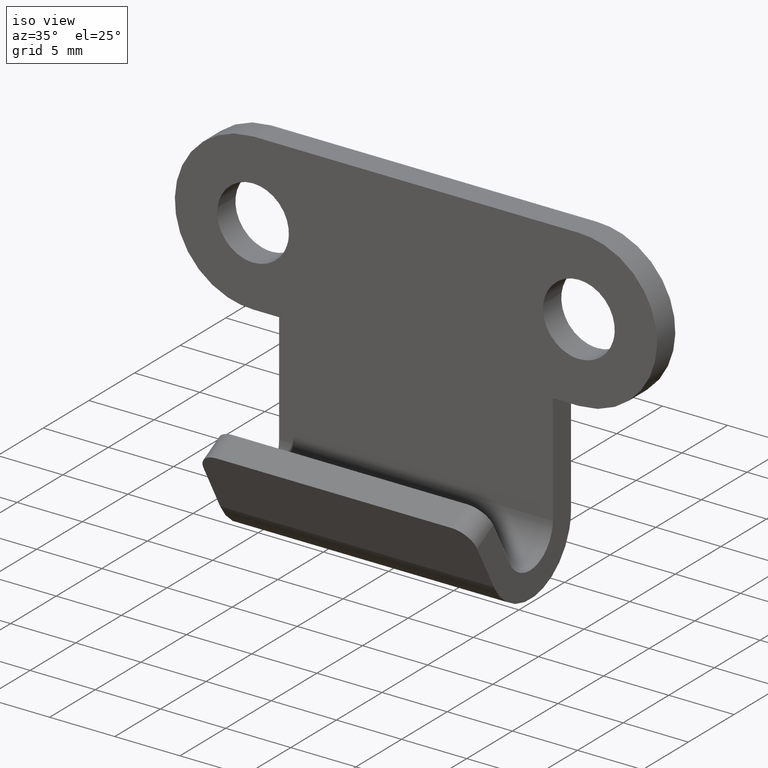
[diagram: clean part render]
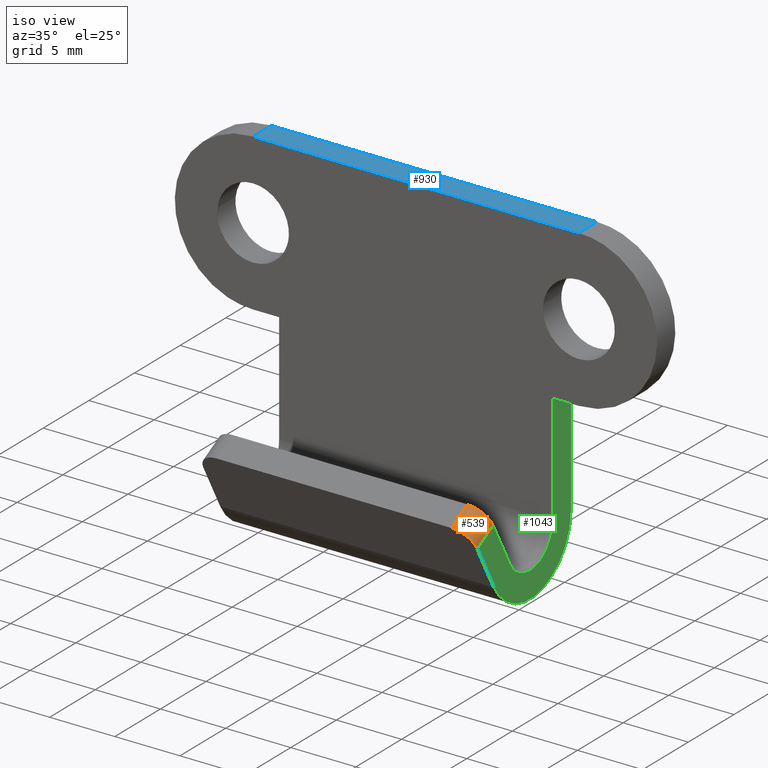
[diagram: same view with three faces highlighted in distinct colors, each labeled with its STEP entity id]
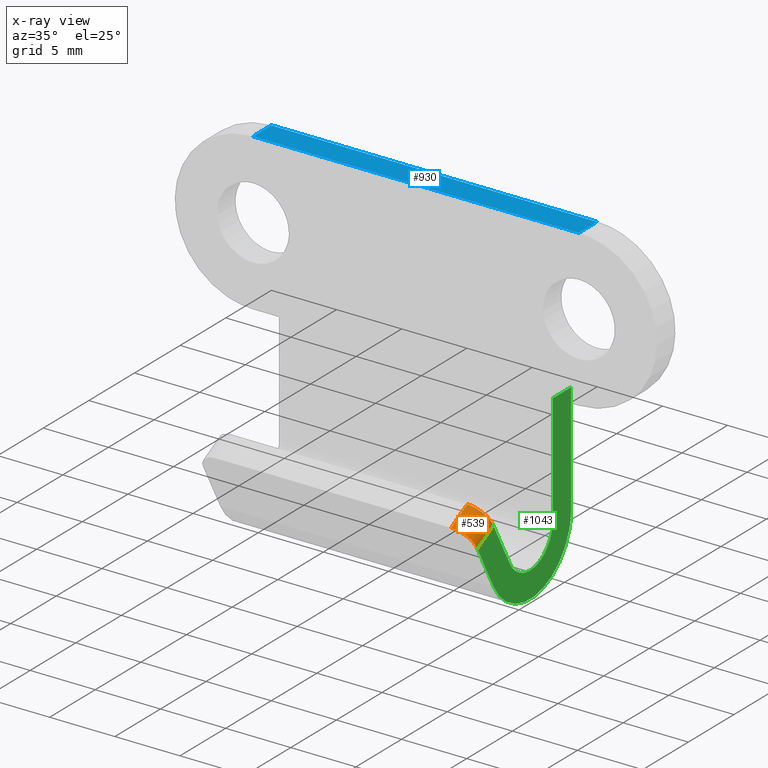
[diagram: x-ray of the same camera — body ghosted, the three highlighted faces saturated]
A machine part, iso view with three faces highlighted in distinct colors.
The next image is the same camera in x-ray (body ghosted, the three faces saturated) — at least one of them is partly hidden behind the body in this view.
Their STEP definitions:

[orange] entity #539 — the highlighted face is a freeform B-spline surface patch.
#477=CARTESIAN_POINT('',(8.934570918951998,-9.200349975199398,-16.977228408282048));
#478=CARTESIAN_POINT('',(8.934570918951998,-11.047997297620190,-17.986854495006579));
#479=CARTESIAN_POINT('',(10.614090714818433,-9.235512723347274,-16.912879479189741));
#480=CARTESIAN_POINT('',(10.614090714818438,-11.083160045768063,-17.922505565914264));
#481=CARTESIAN_POINT('',(10.496314350071174,-8.431366863450389,-18.384491558563070));
#482=CARTESIAN_POINT('',(10.496314350071174,-10.279014185871180,-19.394117645287601));
#490=(BOUNDED_SURFACE()B_SPLINE_SURFACE(1,2,((#477,#479,#481),(#478,#480,#482)),.UNSPECIFIED.,.F.,.F.,.U.)B_SPLINE_SURFACE_WITH_KNOTS((2,2),(3,3),(0.0,2.105503612688281),(0.0,2.687614148820226),.UNSPECIFIED.)GEOMETRIC_REPRESENTATION_ITEM()RATIONAL_B_SPLINE_SURFACE(((1.0,0.664513856307367,0.996233644766415),(1.0,0.664513856307367,0.996233644766415)))REPRESENTATION_ITEM('')SURFACE());
#491=CARTESIAN_POINT('',(10.500000000000000,-10.284340886672441,-19.277275018970251));
#492=VERTEX_POINT('',#491);
#493=CARTESIAN_POINT('',(9.0,-11.0,-17.959000000000000));
#494=VERTEX_POINT('',#493);
#495=CARTESIAN_POINT('',(10.500000000000000,-10.284340886672441,-19.277275018970251));
#496=CARTESIAN_POINT('',(10.499999999999998,-10.999999768070049,-17.959000427224886));
#497=CARTESIAN_POINT('',(9.0,-11.0,-17.959000000000000));
#505=(BOUNDED_CURVE()B_SPLINE_CURVE(2,(#495,#496,#497),.UNSPECIFIED.,.F.,.U.)CURVE()GEOMETRIC_REPRESENTATION_ITEM()QUASI_UNIFORM_CURVE()RATIONAL_B_SPLINE_CURVE((1.0,0.707106895765713,1.0))REPRESENTATION_ITEM(''));
#506=EDGE_CURVE('',#492,#494,#505,.T.);
#507=ORIENTED_EDGE('',*,*,#506,.F.);
#508=CARTESIAN_POINT('',(10.500000000000000,-8.529161378109500,-18.318176928536150));
#509=VERTEX_POINT('',#508);
#510=CARTESIAN_POINT('',(10.500000000000000,-8.529161378109500,-18.318176928536150));
#511=CARTESIAN_POINT('',(10.500000000000000,-10.284340886672441,-19.277275018970251));
#512=QUASI_UNIFORM_CURVE('',1,(#510,#511),.UNSPECIFIED.,.F.,.U.);
#513=EDGE_CURVE('',#509,#492,#512,.T.);
#514=ORIENTED_EDGE('',*,*,#513,.F.);
#515=CARTESIAN_POINT('',(9.0,-9.244999999999999,-17.0));
#516=VERTEX_POINT('',#515);
#517=CARTESIAN_POINT('',(9.0,-9.244999999999999,-17.0));
#518=CARTESIAN_POINT('',(9.621320003108027,-9.245000095174039,-16.999999824742236));
#519=CARTESIAN_POINT('',(10.060660001554011,-9.035335803119635,-17.386084933972729));
#520=CARTESIAN_POINT('',(10.499999999999998,-8.825671511065231,-17.772170043203218));
#521=CARTESIAN_POINT('',(10.500000000000000,-8.529161378109500,-18.318176928536150));
#529=(BOUNDED_CURVE()B_SPLINE_CURVE(2,(#517,#518,#519,#520,#521),.UNSPECIFIED.,.F.,.U.)B_SPLINE_CURVE_WITH_KNOTS((3,2,3),(0.0,0.500000000000000,1.0),.UNSPECIFIED.)CURVE()GEOMETRIC_REPRESENTATION_ITEM()RATIONAL_B_SPLINE_CURVE((1.0,0.923879501802773,1.0,0.923879501802773,1.0))REPRESENTATION_ITEM(''));
#530=EDGE_CURVE('',#516,#509,#529,.T.);
#531=ORIENTED_EDGE('',*,*,#530,.F.);
#532=CARTESIAN_POINT('',(9.0,-11.0,-17.959000000000000));
#533=CARTESIAN_POINT('',(9.0,-9.244999999999999,-17.0));
#534=QUASI_UNIFORM_CURVE('',1,(#532,#533),.UNSPECIFIED.,.F.,.U.);
#535=EDGE_CURVE('',#494,#516,#534,.T.);
#536=ORIENTED_EDGE('',*,*,#535,.F.);
#537=EDGE_LOOP('',(#507,#514,#531,#536));
#538=FACE_OUTER_BOUND('',#537,.T.);
#539=ADVANCED_FACE('',(#538),#490,.T.);

[blue] entity #930 — the highlighted face is a freeform B-spline surface patch.
#594=CARTESIAN_POINT('',(-12.500000000000000,-2.0,0.0));
#595=VERTEX_POINT('',#594);
#611=CARTESIAN_POINT('',(-12.500000000000000,0.0,0.0));
#612=VERTEX_POINT('',#611);
#613=CARTESIAN_POINT('',(-12.500000000000000,0.0,0.0));
#614=CARTESIAN_POINT('',(-12.500000000000000,-2.0,0.0));
#615=QUASI_UNIFORM_CURVE('',1,(#613,#614),.UNSPECIFIED.,.F.,.U.);
#616=EDGE_CURVE('',#612,#595,#615,.T.);
#657=CARTESIAN_POINT('',(12.500000000000000,-2.0,0.0));
#658=VERTEX_POINT('',#657);
#681=CARTESIAN_POINT('',(12.500000000000000,0.0,0.0));
#682=VERTEX_POINT('',#681);
#698=CARTESIAN_POINT('',(12.500000000000000,0.0,0.0));
#699=CARTESIAN_POINT('',(12.500000000000000,-2.0,0.0));
#700=QUASI_UNIFORM_CURVE('',1,(#698,#699),.UNSPECIFIED.,.F.,.U.);
#701=EDGE_CURVE('',#682,#658,#700,.T.);
#887=CARTESIAN_POINT('',(12.500000000000000,0.0,0.0));
#888=CARTESIAN_POINT('',(-12.500000000000000,0.0,0.0));
#889=QUASI_UNIFORM_CURVE('',1,(#887,#888),.UNSPECIFIED.,.F.,.U.);
#890=EDGE_CURVE('',#682,#612,#889,.T.);
#915=CARTESIAN_POINT('',(-13.748749951545150,0.099899996123612,-1.224606E-016));
#916=CARTESIAN_POINT('',(-13.748749951545150,-2.099900049767792,-1.224606E-016));
#917=CARTESIAN_POINT('',(13.748750622097401,0.099899996123612,-1.224606E-016));
#918=CARTESIAN_POINT('',(13.748750622097401,-2.099900049767792,-1.224606E-016));
#919=B_SPLINE_SURFACE_WITH_KNOTS('',1,1,((#915,#917),(#916,#918)),.UNSPECIFIED.,.F.,.F.,.U.,(2,2),(2,2),(0.0,2.199800045891404),(0.0,27.497500573642551),.UNSPECIFIED.);
#920=ORIENTED_EDGE('',*,*,#890,.T.);
#921=ORIENTED_EDGE('',*,*,#616,.T.);
#922=CARTESIAN_POINT('',(12.500000000000000,-2.0,0.0));
#923=CARTESIAN_POINT('',(-12.500000000000000,-2.0,0.0));
#924=QUASI_UNIFORM_CURVE('',1,(#922,#923),.UNSPECIFIED.,.F.,.U.);
#925=EDGE_CURVE('',#658,#595,#924,.T.);
#926=ORIENTED_EDGE('',*,*,#925,.F.);
#927=ORIENTED_EDGE('',*,*,#701,.F.);
#928=EDGE_LOOP('',(#920,#921,#926,#927));
#929=FACE_OUTER_BOUND('',#928,.T.);
#930=ADVANCED_FACE('',(#929),#919,.T.);

[green] entity #1043 — the highlighted face is a freeform B-spline surface patch.
#491=CARTESIAN_POINT('',(10.500000000000000,-10.284340886672441,-19.277275018970251));
#492=VERTEX_POINT('',#491);
#508=CARTESIAN_POINT('',(10.500000000000000,-8.529161378109500,-18.318176928536150));
#509=VERTEX_POINT('',#508);
#510=CARTESIAN_POINT('',(10.500000000000000,-8.529161378109500,-18.318176928536150));
#511=CARTESIAN_POINT('',(10.500000000000000,-10.284340886672441,-19.277275018970251));
#512=QUASI_UNIFORM_CURVE('',1,(#510,#511),.UNSPECIFIED.,.F.,.U.);
#513=EDGE_CURVE('',#509,#492,#512,.T.);
#711=CARTESIAN_POINT('',(10.500000000000000,-2.0,-12.0));
#712=VERTEX_POINT('',#711);
#718=CARTESIAN_POINT('',(10.500000000000000,0.0,-12.0));
#719=VERTEX_POINT('',#718);
#720=CARTESIAN_POINT('',(10.500000000000000,0.0,-12.0));
#721=CARTESIAN_POINT('',(10.500000000000000,-2.0,-12.0));
#722=QUASI_UNIFORM_CURVE('',1,(#720,#721),.UNSPECIFIED.,.F.,.U.);
#723=EDGE_CURVE('',#719,#712,#722,.T.);
#745=CARTESIAN_POINT('',(10.500000000000000,-6.719570179167660,-21.650438272898501));
#746=VERTEX_POINT('',#745);
#747=CARTESIAN_POINT('',(10.500000000000000,-8.529161378109500,-18.318176928536150));
#748=CARTESIAN_POINT('',(10.500000000000000,-6.719570179167660,-21.650438272898501));
#749=QUASI_UNIFORM_CURVE('',1,(#747,#748),.UNSPECIFIED.,.F.,.U.);
#750=EDGE_CURVE('',#509,#746,#749,.T.);
#789=CARTESIAN_POINT('',(10.500000000000000,-8.455000000000000,-22.646999999999998));
#790=VERTEX_POINT('',#789);
#791=CARTESIAN_POINT('',(10.500000000000000,-8.455000000000000,-22.646999999999998));
#792=CARTESIAN_POINT('',(10.500000000000000,-10.284340886672441,-19.277275018970251));
#793=QUASI_UNIFORM_CURVE('',1,(#791,#792),.UNSPECIFIED.,.F.,.U.);
#794=EDGE_CURVE('',#790,#492,#793,.T.);
#849=CARTESIAN_POINT('',(10.500000000000000,0.0,-20.500000000000000));
#850=VERTEX_POINT('',#849);
#856=CARTESIAN_POINT('',(10.500000000000000,-8.454999999999947,-22.646999999999970));
#857=CARTESIAN_POINT('',(10.500000000000000,-6.785046486898677,-25.723126549869640));
#858=CARTESIAN_POINT('',(10.500000000000000,-3.392530029464833,-24.861656078656111));
#859=CARTESIAN_POINT('',(10.500000000000000,-0.000013572030988,-24.000185607442571));
#860=CARTESIAN_POINT('',(10.500000000000000,-9.540979E-015,-20.500000000000000));
#868=(BOUNDED_CURVE()B_SPLINE_CURVE(2,(#856,#857,#858,#859,#860),.UNSPECIFIED.,.F.,.U.)B_SPLINE_CURVE_WITH_KNOTS((3,2,3),(0.0,0.500000000000000,1.0),.UNSPECIFIED.)CURVE()GEOMETRIC_REPRESENTATION_ITEM()RATIONAL_B_SPLINE_CURVE((1.0,0.789343121397899,1.0,0.789343121397899,1.0))REPRESENTATION_ITEM(''));
#869=EDGE_CURVE('',#790,#850,#868,.T.);
#894=CARTESIAN_POINT('',(10.500000000000000,0.0,-12.0));
#895=CARTESIAN_POINT('',(10.500000000000000,0.0,-20.500000000000000));
#896=QUASI_UNIFORM_CURVE('',1,(#894,#895),.UNSPECIFIED.,.F.,.U.);
#897=EDGE_CURVE('',#719,#850,#896,.T.);
#943=CARTESIAN_POINT('',(10.500000000000000,-2.0,-20.500000000000000));
#944=VERTEX_POINT('',#943);
#950=CARTESIAN_POINT('',(10.500000000000000,-2.0,-20.500000000000000));
#951=CARTESIAN_POINT('',(10.500000000000000,-2.0,-12.0));
#952=QUASI_UNIFORM_CURVE('',1,(#950,#951),.UNSPECIFIED.,.F.,.U.);
#953=EDGE_CURVE('',#944,#712,#952,.T.);
#1009=CARTESIAN_POINT('',(10.500000000000000,-6.719570179167652,-21.650438272898501));
#1010=CARTESIAN_POINT('',(10.499999999999998,-5.815876229373917,-23.393958276803460));
#1011=CARTESIAN_POINT('',(10.500000000000000,-3.907938114686957,-22.928880961257590));
#1012=CARTESIAN_POINT('',(10.499999999999998,-1.999999999999999,-22.463803645711707));
#1013=CARTESIAN_POINT('',(10.500000000000000,-2.0,-20.500000000000000));
#1021=(BOUNDED_CURVE()B_SPLINE_CURVE(2,(#1009,#1010,#1011,#1012,#1013),.UNSPECIFIED.,.F.,.U.)B_SPLINE_CURVE_WITH_KNOTS((3,2,3),(0.0,0.500000000000000,1.0),.UNSPECIFIED.)CURVE()GEOMETRIC_REPRESENTATION_ITEM()RATIONAL_B_SPLINE_CURVE((1.0,0.786391999617626,1.0,0.786391999617626,1.0))REPRESENTATION_ITEM(''));
#1022=EDGE_CURVE('',#746,#944,#1021,.T.);
#1028=CARTESIAN_POINT('',(10.500000000000000,-10.798043694028680,-11.350673753023379));
#1029=CARTESIAN_POINT('',(10.500000000000000,0.513703083203758,-11.350673753023379));
#1030=CARTESIAN_POINT('',(10.500000000000000,-10.798043694028680,-25.648851564063950));
#1031=CARTESIAN_POINT('',(10.500000000000000,0.513703083203758,-25.648851564063950));
#1032=B_SPLINE_SURFACE_WITH_KNOTS('',1,1,((#1028,#1030),(#1029,#1031)),.UNSPECIFIED.,.F.,.F.,.U.,(2,2),(2,2),(0.0,11.311746777232440),(0.0,14.298177811040571),.UNSPECIFIED.);
#1033=ORIENTED_EDGE('',*,*,#750,.F.);
#1034=ORIENTED_EDGE('',*,*,#513,.T.);
#1035=ORIENTED_EDGE('',*,*,#794,.F.);
#1036=ORIENTED_EDGE('',*,*,#869,.T.);
#1037=ORIENTED_EDGE('',*,*,#897,.F.);
#1038=ORIENTED_EDGE('',*,*,#723,.T.);
#1039=ORIENTED_EDGE('',*,*,#953,.F.);
#1040=ORIENTED_EDGE('',*,*,#1022,.F.);
#1041=EDGE_LOOP('',(#1033,#1034,#1035,#1036,#1037,#1038,#1039,#1040));
#1042=FACE_OUTER_BOUND('',#1041,.T.);
#1043=ADVANCED_FACE('',(#1042),#1032,.F.);